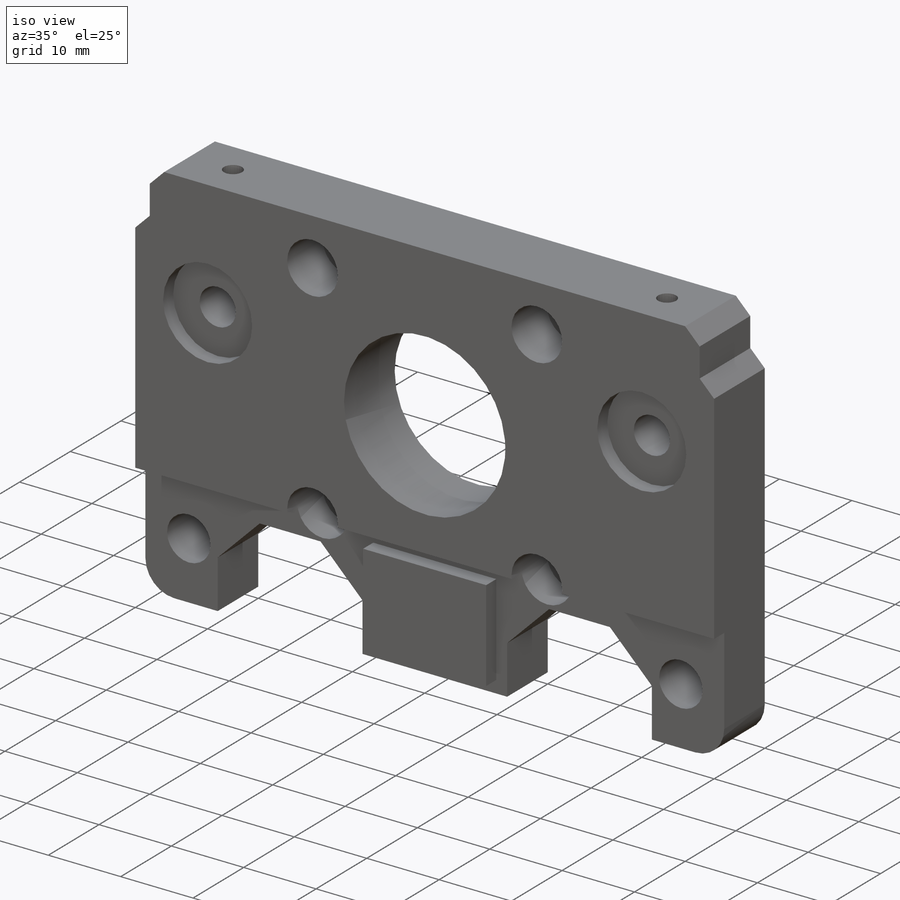
[diagram: iso view]
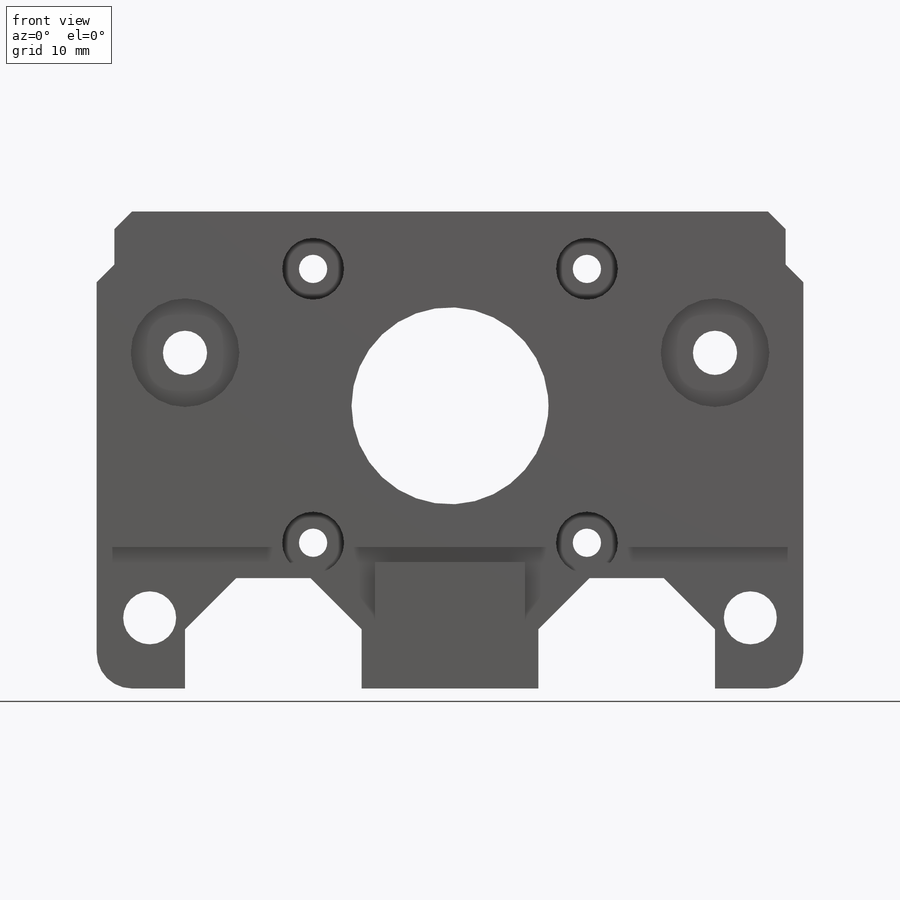
[diagram: front view]
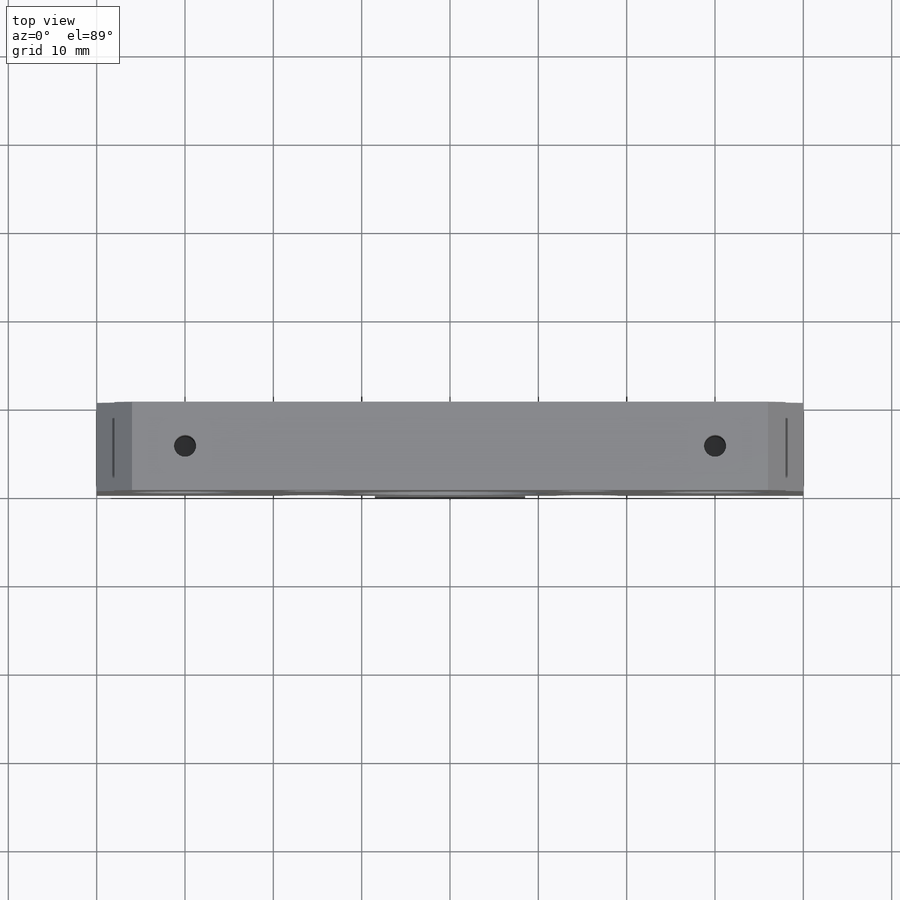
[diagram: top view]
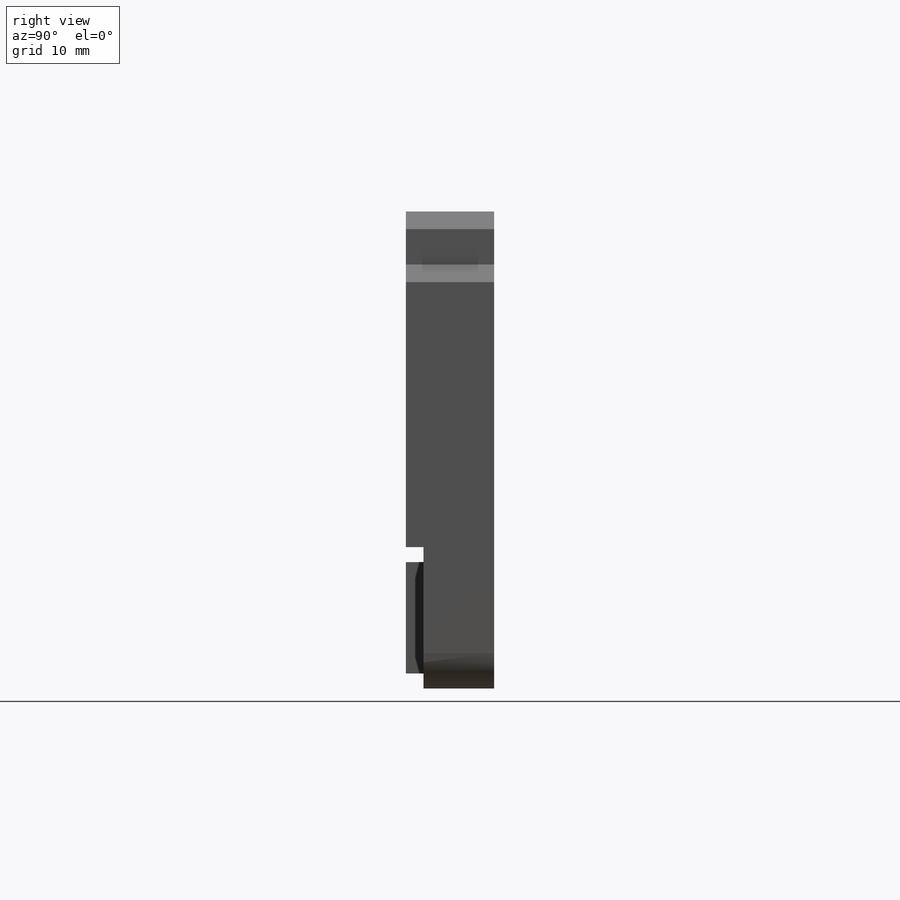
[diagram: right view]
SOLIDWORKS PART (.sldprt)
format: sldprt  version: not decoded by parser v0  size: 635,904 bytes
history: native  units: mm
features: sketch x5, chamfer x4, cut_extrude x3, extrude x2, material x1, fillet x1 (+12 scaffold rows collapsed)
feature tree (28):
  scaffold x12  (default folders/planes/origin — collapsed)
  material  "6061 Alloy"
  sketch  "Sketch1"  dims[c1.D1=4.0mm c1.D4=22.3mm c1.D5=5.0mm c1.D6=5.0mm c1.D10=21.0mm c1.D11=40.0mm c1.D12=12.0mm c2.D10=21.0mm c2.D13=40.0mm c2.D2=16.0mm c2.D3=80.0mm c2.D6=60.0mm c2.D7=10.0mm c2.D8=6.0mm c2.D9=16.0mm c3.D7=22.0mm c3.D11=12.25mm c3.D12=20.0mm c3.D13=10.0mm c3.D14=20.0mm c3.D15=5.8mm c3.D16=5.8mm c4.D16=45.0deg c4.D17=12.5mm c4.D18=15.0mm c4.D19=~2.970241mm c5.D19=45.0deg c5.D20=6.0mm c5.D21=76.0mm]
  extrude  "Boss-Extrude1"  Depth=8mm
  sketch  "Sketch2"  dims[c1.D3=3.0mm c1.D8=12.3mm c1.D1=1.2mm c1.D2=1.2mm c1.D4=1.0mm c1.D5=14.5mm c1.D6=2.0mm c1.D7=10.0mm c2.D6=10.0mm c2.D5=1.7mm c3.D6=1.7mm c3.D7=17.0mm]
  extrude  "Boss-Extrude2"  Depth=2mm
  sketch  "Sketch3"  dims[c1.D1=~5.532108mm c1.D2=~5.532108mm c1.D3=6.0mm c1.D5=3.2mm c2.D1=8.0mm c2.D2=6.0mm c2.D4=31.0mm]
  cut_extrude  "Cut-Extrude1"  [1 undecoded]
  chamfer  "Chamfer1"  Distance=2mm Angle=45deg
  sketch  "Sketch4"  dims[D1=7.0mm]
  cut_extrude  "Cut-Extrude2"  Depth=7mm
  sketch  "Sketch5"  dims[D1=2.5mm D2=60.0mm]
  cut_extrude  "Cut-Extrude3"  Depth=15mm _TNextInd=124 _TElemType=0mm _TCompTag=0mm _TID1=0mm _TAttDefEntBased2=0mm _TElemTag=0mm _TID2=0mm _TSegmType=0mm _TAttDefNameBased2=0mm
  fillet  "Fillet1"  Radius=0.5mm
  chamfer  "Chamfer2"  Distance=0.5mm Angle=45deg
  chamfer  "Chamfer3"  Distance=3mm Angle=45deg
  chamfer  "Chamfer4"  Distance=0.5mm Angle=45deg
decode coverage: 14 of 15 modeling features carry decoded parameters
note: ~ marks probable driven/reference dimensions
note: 1 parameter value undecoded
note: suppression state not decoded; provenance and decode notes live in map.json
